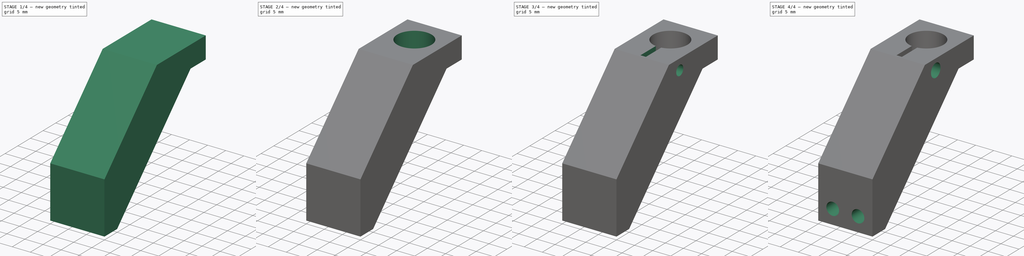
[diagram: build sequence overview — one tinted view per stage of 4, left to right]
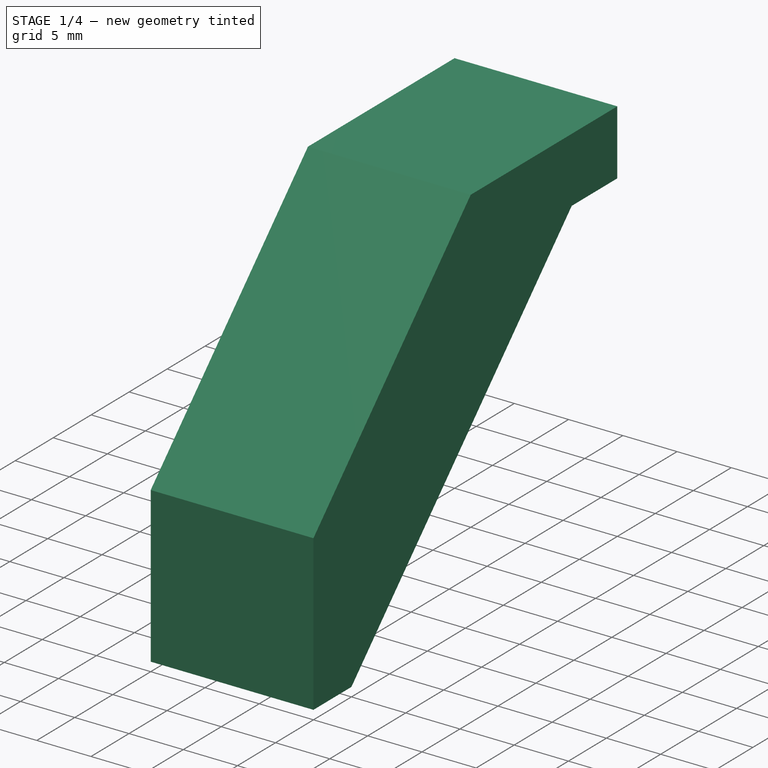
[diagram: stage 1 of 4 — iso view after this stage's code; geometry added in this stage tinted green]
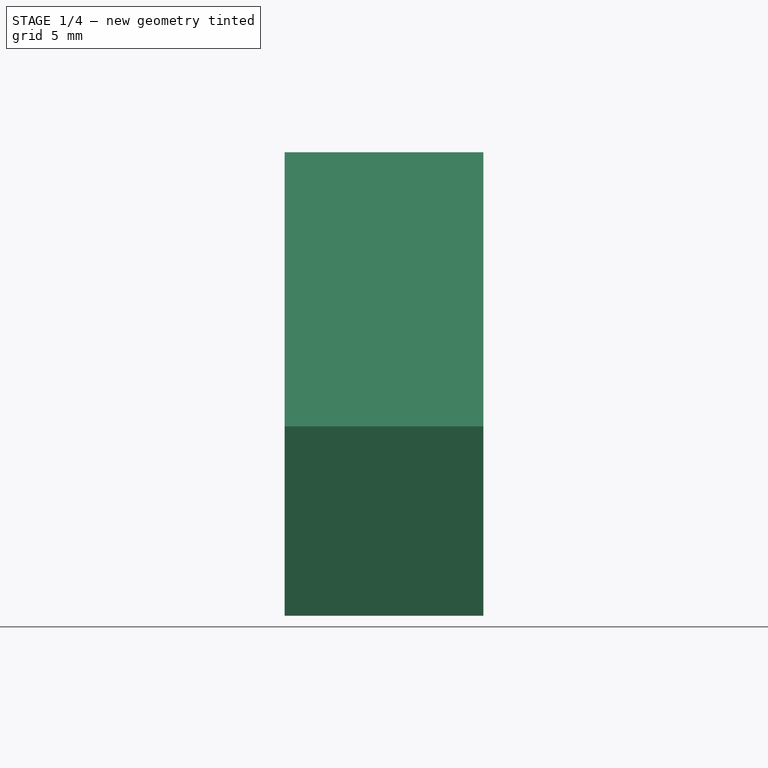
[diagram: stage 1 of 4 — front view after this stage's code; geometry added in this stage tinted green]
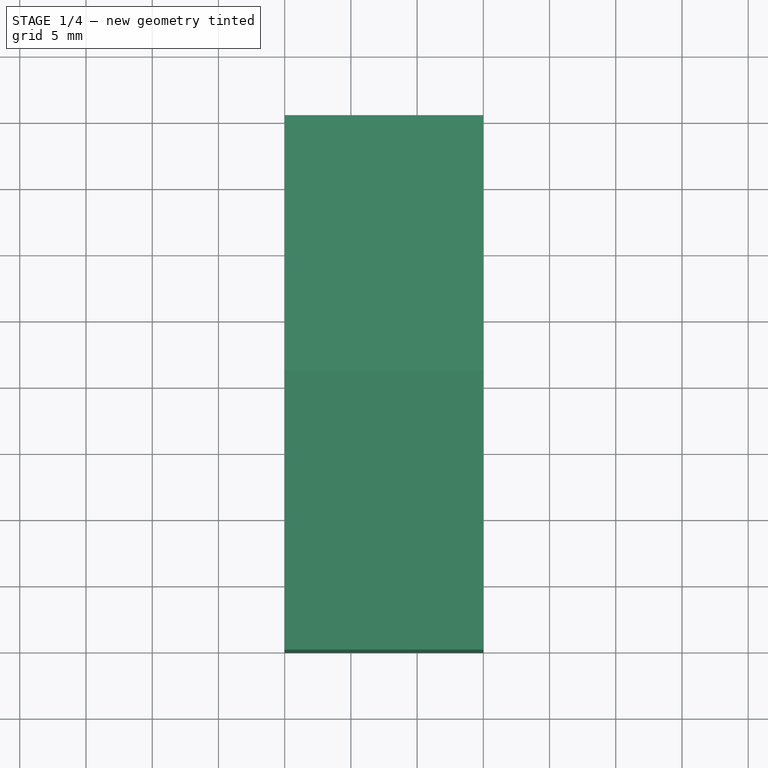
[diagram: stage 1 of 4 — top view after this stage's code; geometry added in this stage tinted green]
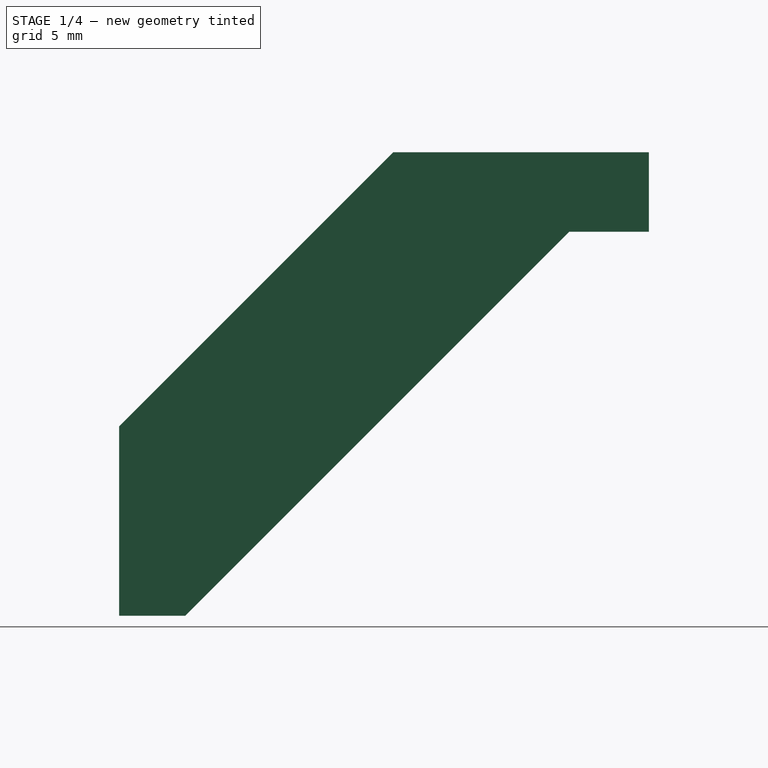
[diagram: stage 1 of 4 — right view after this stage's code; geometry added in this stage tinted green]
FCSTD DOCUMENT  (FreeCAD 0.19R)
Label: MicrometerHolder
License: All rights reserved
LicenseURL: http://en.wikipedia.org/wiki/All_rights_reserved
objects: Sketcher::SketchObject×14, PartDesign::Pocket×10, PartDesign::Pad×1, PartDesign::Body×1
note: 37 computed .brp shape members not serialized (recipe doc carries the construction recipe); baked Part::Feature solids carry a one-line shape summary decoded from their .brp

FEATURE [Sketcher::SketchObject] Sketch
  FullyConstrained = false
  MapMode = 5
  Placement = pos=(0,0,0) rot=(0.57735,0.57735,0.57735;2.0944rad)
  Support = -> [YZ_Plane]
  sketch-geometry (7):
    g0: LineSegment StartX=20.7016 StartY=0 StartZ=0 EndX=40 EndY=0 EndZ=0
    g1: LineSegment StartX=40 StartY=0 StartZ=0 EndX=40 EndY=-6 EndZ=0
    g2: LineSegment StartX=40 StartY=-6 StartZ=0 EndX=34 EndY=-6 EndZ=0
    g3: LineSegment StartX=5 StartY=-35 StartZ=0 EndX=0 EndY=-35 EndZ=0
    g4: LineSegment StartX=5 StartY=-35 StartZ=0 EndX=34 EndY=-6 EndZ=0
    g5: LineSegment StartX=0 StartY=-35 StartZ=0 EndX=0 EndY=-20.7016 EndZ=0
    g6: LineSegment StartX=0 StartY=-20.7016 StartZ=0 EndX=20.7016 EndY=0 EndZ=0
  constraints (20):
    c: PointOnObject(g0,g-1)
    c: Coincident(g0,g1)
    c: Vertical(g1)
    c: Coincident(g1,g2)
    c: Horizontal(g2)
    c: PointOnObject(g3,g-2)
    c: Horizontal(g3)
    c: Distance(g3) = 5
    c: Distance(g1) = 6
    c: DistanceX(g0) = 40
    c: DistanceY(g3) = -35
    c: Coincident(g4,g2)
    c: Coincident(g3,g5)
    c: PointOnObject(g5,g-2)
    c: Coincident(g5,g6)
    c: Coincident(g0,g6)
    c: PointOnObject(g0,g-1)
    c: Parallel(g4,g6)
    c: Angle(g6) = 0.785398
    c: Coincident(g4,g3)
FEATURE [PartDesign::Pad] Pad
  Direction = (1,1,1)
  Length = 15
  Length2 = 100
  Placement = pos=(0,0,0) rot=(0.57735,0.57735,0.57735;2.0944rad)
  Profile = -> Sketch
  Type = 0
FEATURE [Sketcher::SketchObject] Sketch001
  FullyConstrained = true
  MapMode = 5
  Placement = pos=(1.67e-14,20,-20) rot=(0.678598,0.678598,0.281085;3.68962rad)
  Support = -> [Pad]
  sketch-geometry (1):
    g0: Circle CenterX=-32 CenterY=7.5 CenterZ=0 NormalX=0 NormalY=0 NormalZ=1 AngleXU=0 Radius=4.725
  constraints (3):
    c: DistanceY(g0) = 7.5
    c: Diameter(g0) = 9.45
    c: DistanceX(g0) = -32
FEATURE [PartDesign::Pocket] Pocket
  BaseFeature = -> Pad
  Length = 5
  Length2 = 100
  Placement = pos=(0,0,0) rot=(0.57735,0.57735,0.57735;2.0944rad)
  Profile = -> Sketch001
  Type = 1
FEATURE [Sketcher::SketchObject] Sketch002
  FullyConstrained = false
  MapMode = 5
  Placement = pos=(-7e-16,0,0) rot=(0.57735,0.57735,-0.57735;4.18879rad)
  Support = -> [Pocket]
  sketch-geometry (4):
    g0: LineSegment StartX=-28.5714 StartY=8.5 StartZ=0 EndX=-15.0736 EndY=8.5 EndZ=0
    g1: LineSegment StartX=-15.0736 StartY=8.5 StartZ=0 EndX=-15.0736 EndY=6.5 EndZ=0
    g2: LineSegment StartX=-15.0736 StartY=6.5 StartZ=0 EndX=-28.5714 EndY=6.5 EndZ=0
    g3: LineSegment StartX=-28.5714 StartY=6.5 StartZ=0 EndX=-28.5714 EndY=8.5 EndZ=0
  constraints (10):
    c: Coincident(g0,g1)
    c: Coincident(g1,g2)
    c: Coincident(g2,g3)
    c: Coincident(g3,g0)
    c: Horizontal(g0)
    c: Horizontal(g2)
    c: Vertical(g1)
    c: Vertical(g3)
    c: DistanceY(g1) = 6.5
    c: DistanceY(g0) = 8.5
FEATURE [PartDesign::Pocket] Pocket001
  BaseFeature = -> Pocket
  Length = 5
  Length2 = 100
  Placement = pos=(0,0,0) rot=(0.57735,0.57735,0.57735;2.0944rad)
  Profile = -> Sketch002
  Type = 1
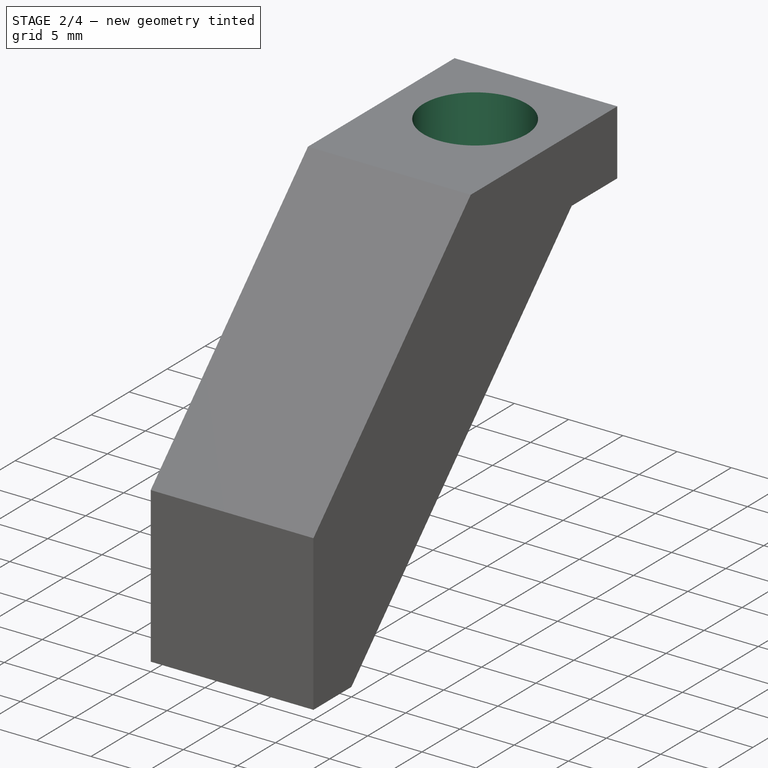
[diagram: stage 2 of 4 — iso view after this stage's code; geometry added in this stage tinted green]
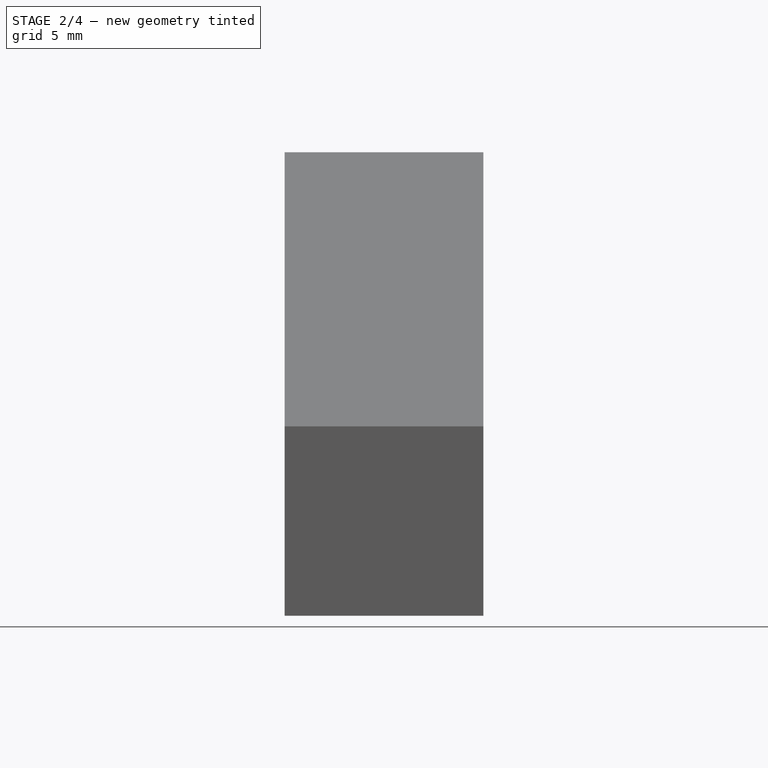
[diagram: stage 2 of 4 — front view after this stage's code; geometry added in this stage tinted green]
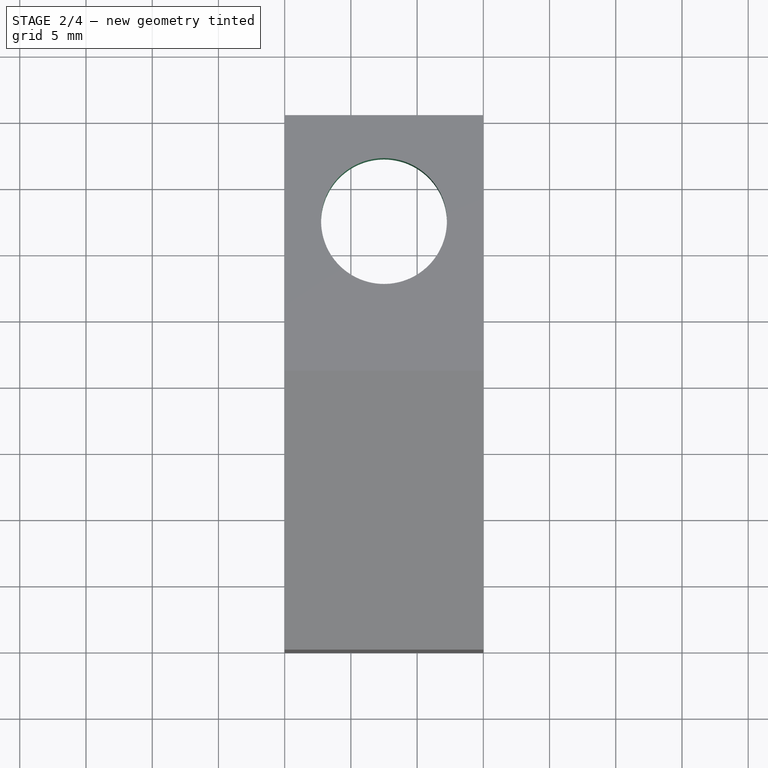
[diagram: stage 2 of 4 — top view after this stage's code; geometry added in this stage tinted green]
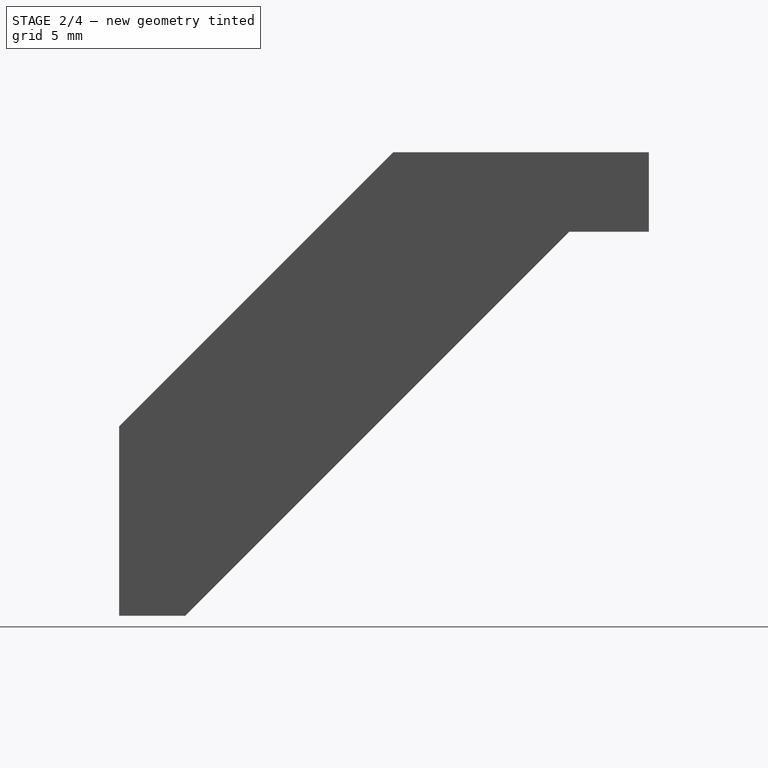
[diagram: stage 2 of 4 — right view after this stage's code; geometry added in this stage tinted green]
FEATURE [Sketcher::SketchObject] Sketch003
  FullyConstrained = true
  MapMode = 5
  Placement = pos=(1.36e-14,-1.94e-14,-35) rot=(0.707107,0.707107,0;3.14159rad)
  Support = -> [Pocket001]
  sketch-geometry (1):
    g0: Circle CenterX=23 CenterY=-3 CenterZ=0 NormalX=0 NormalY=0 NormalZ=1 AngleXU=0 Radius=1.75
  constraints (3):
    c: Diameter(g0) = 3.5
    c: DistanceY(g0) = -3
    c: DistanceX(g0) = 23
FEATURE [Sketcher::SketchObject] Sketch004
  FullyConstrained = true
  MapMode = 5
  Placement = pos=(1.36e-14,-1.94e-14,-35) rot=(0.707107,0.707107,0;3.14159rad)
  sketch-geometry (1):
    g0: Circle CenterX=23 CenterY=-3 CenterZ=0 NormalX=0 NormalY=0 NormalZ=1 AngleXU=0 Radius=1.4
  constraints (3):
    c: Diameter(g0) = 2.8
    c: DistanceX(g0) = 23
    c: DistanceY(g0) = -3
FEATURE [Sketcher::SketchObject] Sketch006
  FullyConstrained = true
  MapMode = 5
  Placement = pos=(1.67e-14,20,-20) rot=(0.678598,0.678598,0.281085;3.68962rad)
  Support = -> [Pocket001]
FEATURE [Sketcher::SketchObject] Sketch007
  FullyConstrained = false
  MapMode = 5
  Placement = pos=(1.78e-14,40,-1.33e-14) rot=(0.57735,0.57735,0.57735;4.18879rad)
  Support = -> [Pocket001]
  sketch-geometry (9):
    g0: LineSegment StartX=-37.9198 StartY=6.75 StartZ=0 EndX=-28 EndY=6.75 EndZ=0
    g1: LineSegment StartX=-28 StartY=6.75 StartZ=0 EndX=-28 EndY=1.25 EndZ=0
    g2: LineSegment StartX=-28 StartY=1.25 StartZ=0 EndX=-37.9198 EndY=1.25 EndZ=0
    g3: LineSegment StartX=-37.9198 StartY=1.25 StartZ=0 EndX=-37.9198 EndY=6.75 EndZ=0
    g4: LineSegment StartX=-37.4274 StartY=13.75 StartZ=0 EndX=-28 EndY=13.75 EndZ=0
    g5: LineSegment StartX=-28 StartY=13.75 StartZ=0 EndX=-28 EndY=8.25 EndZ=0
    g6: LineSegment StartX=-28 StartY=8.25 StartZ=0 EndX=-37.4274 EndY=8.25 EndZ=0
    g7: LineSegment StartX=-37.4274 StartY=8.25 StartZ=0 EndX=-37.4274 EndY=13.75 EndZ=0
    g8: LineSegment StartX=-46.9208 StartY=7.5 StartZ=0 EndX=16.8712 EndY=7.5 EndZ=0
  constraints (23):
    c: Coincident(g0,g1)
    c: Coincident(g1,g2)
    c: Coincident(g2,g3)
    c: Coincident(g3,g0)
    c: Horizontal(g0)
    c: Horizontal(g2)
    c: Vertical(g1)
    c: Vertical(g3)
    c: Distance(g1) = 5.5
    c: Coincident(g4,g5)
    c: Coincident(g5,g6)
    c: Coincident(g6,g7)
    c: Coincident(g7,g4)
    c: Horizontal(g4)
    c: Horizontal(g6)
    c: Vertical(g5)
    c: Vertical(g7)
    c: DistanceX(g0,g5) = 0
    c: Distance(g0,g5) = 1.5
    c: Equal(g5,g1)
    c: Symmetric(g0,g5,g8)
    c: DistanceY(g8) = 7.5
    c: DistanceX(g1) = -28
FEATURE [PartDesign::Pocket] Pocket002
  BaseFeature = -> Pocket001
  Length = 34
  Length2 = 100
  Placement = pos=(0,0,0) rot=(0.57735,0.57735,0.57735;2.0944rad)
  Profile = -> Sketch007
  Type = 0
FEATURE [Sketcher::SketchObject] Sketch008
  FullyConstrained = false
  MapMode = 5
  Placement = pos=(1.78e-14,40,-2.66e-14) rot=(0.57735,0.57735,0.57735;4.18879rad)
  Support = -> [Pocket002]
  sketch-geometry (5):
    g0: LineSegment StartX=-23.0024 StartY=13.5 StartZ=0 EndX=-6 EndY=13.5 EndZ=0
    g1: LineSegment StartX=-6 StartY=13.5 StartZ=0 EndX=-6 EndY=1.5 EndZ=0
    g2: LineSegment StartX=-6 StartY=1.5 StartZ=0 EndX=-23.0024 EndY=1.5 EndZ=0
    g3: LineSegment StartX=-23.0024 StartY=1.5 StartZ=0 EndX=-23.0024 EndY=13.5 EndZ=0
    g4: LineSegment StartX=-40.4874 StartY=7.5 StartZ=0 EndX=15.9496 EndY=7.5 EndZ=0
  constraints (12):
    c: Coincident(g0,g1)
    c: Coincident(g1,g2)
    c: Coincident(g2,g3)
    c: Coincident(g3,g0)
    c: Horizontal(g0)
    c: Horizontal(g2)
    c: Vertical(g1)
    c: Vertical(g3)
    c: DistanceX(g1) = -6
    c: Symmetric(g1,g0,g4)
    c: Distance(g1) = 12
    c: DistanceY(g4) = 7.5
FEATURE [PartDesign::Pocket] Pocket003
  BaseFeature = -> Pocket002
  Length = 13
  Length2 = 100
  Placement = pos=(0,0,0) rot=(0.57735,0.57735,0.57735;2.0944rad)
  Profile = -> Sketch008
  Type = 0
FEATURE [Sketcher::SketchObject] Sketch009
  FullyConstrained = true
  MapMode = 5
  Placement = pos=(0,0,-9.2e-15) rot=(0,0,-1;1.5708rad)
  Support = -> [Pocket003]
  sketch-geometry (1):
    g0: Circle CenterX=-32 CenterY=7.5 CenterZ=0 NormalX=0 NormalY=0 NormalZ=1 AngleXU=0 Radius=4.75
  constraints (3):
    c: Diameter(g0) = 9.5
    c: DistanceY(g0) = 7.5
    c: DistanceX(g0) = -32
FEATURE [PartDesign::Pocket] Pocket004
  BaseFeature = -> Pocket003
  Length = 5
  Length2 = 100
  Placement = pos=(0,0,0) rot=(0.57735,0.57735,0.57735;2.0944rad)
  Profile = -> Sketch009
  Type = 1
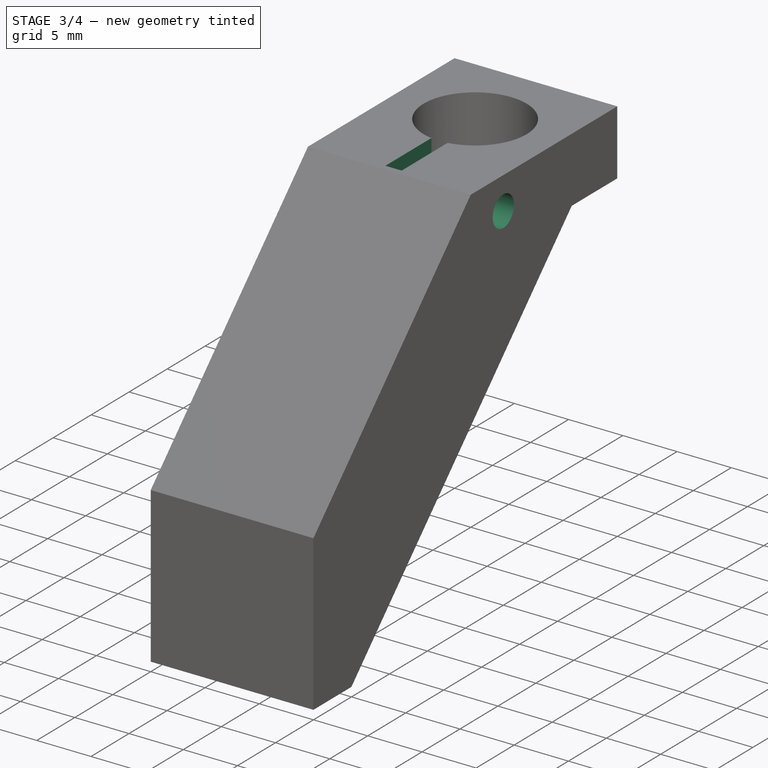
[diagram: stage 3 of 4 — iso view after this stage's code; geometry added in this stage tinted green]
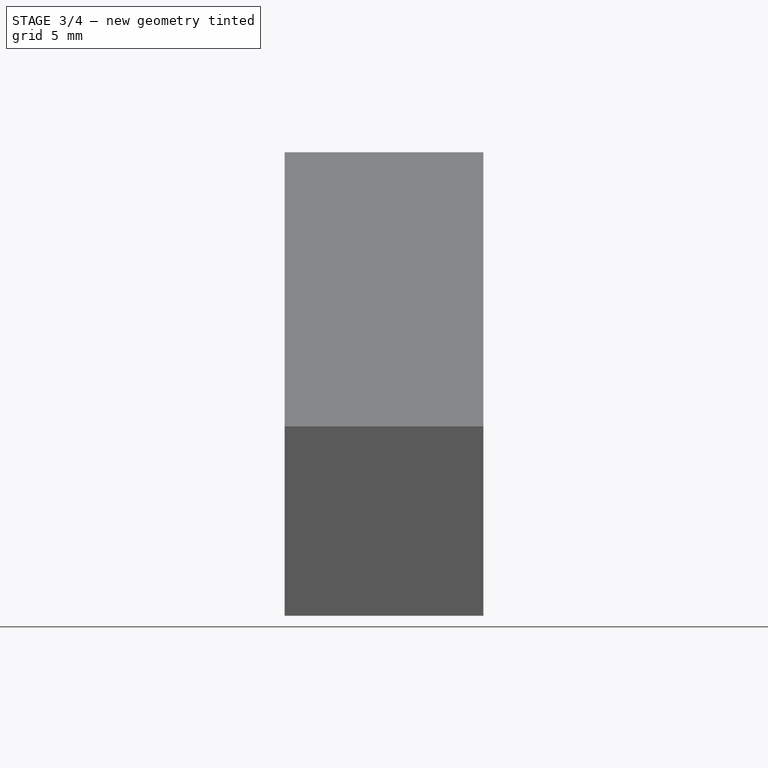
[diagram: stage 3 of 4 — front view after this stage's code; geometry added in this stage tinted green]
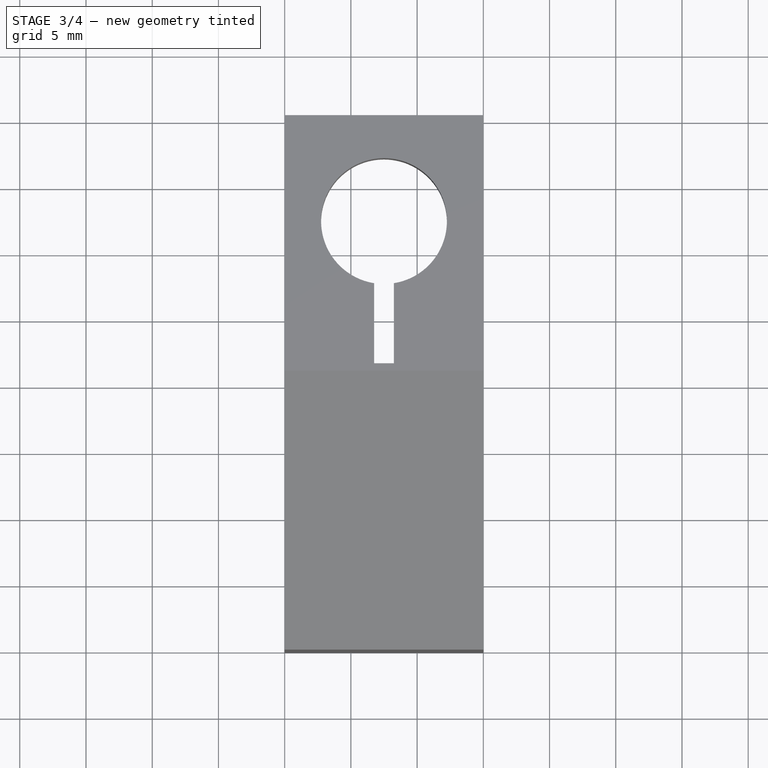
[diagram: stage 3 of 4 — top view after this stage's code; geometry added in this stage tinted green]
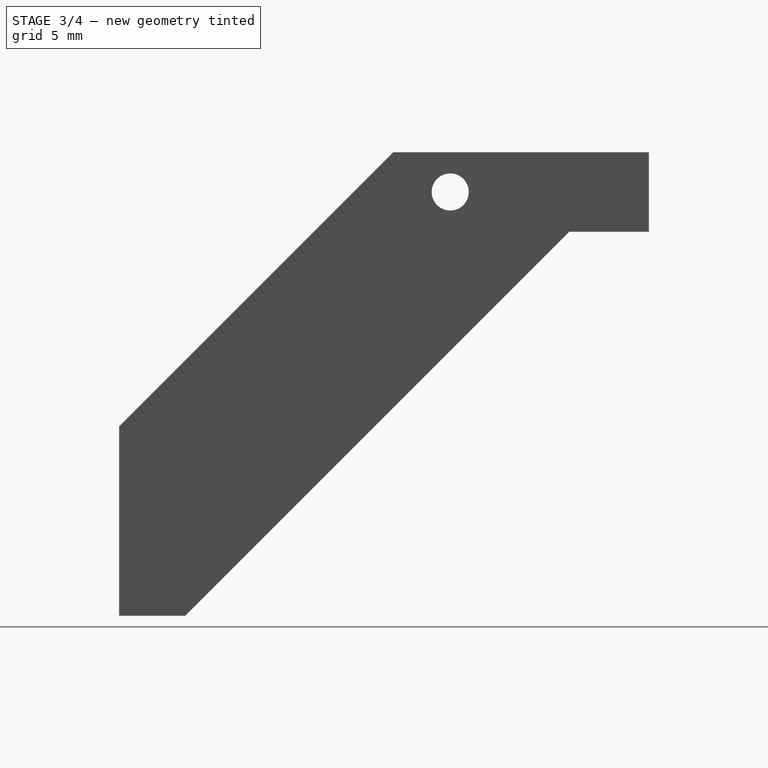
[diagram: stage 3 of 4 — right view after this stage's code; geometry added in this stage tinted green]
FEATURE [Sketcher::SketchObject] Sketch010
  FullyConstrained = false
  MapMode = 5
  Placement = pos=(0,0,-1.38e-14) rot=(0,0,-1;1.5708rad)
  Support = -> [Pocket004]
  sketch-geometry (5):
    g0: LineSegment StartX=-29.3555 StartY=8.25 StartZ=0 EndX=-21.2598 EndY=8.25 EndZ=0
    g1: LineSegment StartX=-21.2598 StartY=8.25 StartZ=0 EndX=-21.2598 EndY=6.75 EndZ=0
    g2: LineSegment StartX=-21.2598 StartY=6.75 StartZ=0 EndX=-29.3555 EndY=6.75 EndZ=0
    g3: LineSegment StartX=-29.3555 StartY=6.75 StartZ=0 EndX=-29.3555 EndY=8.25 EndZ=0
    g4: LineSegment StartX=-44.5506 StartY=7.5 StartZ=0 EndX=7.1378 EndY=7.5 EndZ=0
  constraints (11):
    c: Coincident(g0,g1)
    c: Coincident(g1,g2)
    c: Coincident(g2,g3)
    c: Coincident(g3,g0)
    c: Horizontal(g0)
    c: Horizontal(g2)
    c: Vertical(g1)
    c: Vertical(g3)
    c: Symmetric(g1,g0,g4)
    c: Distance(g3) = 1.5
    c: DistanceY(g4) = 7.5
FEATURE [PartDesign::Pocket] Pocket005
  BaseFeature = -> Pocket004
  Length = 5
  Length2 = 100
  Placement = pos=(0,0,0) rot=(0.57735,0.57735,0.57735;2.0944rad)
  Profile = -> Sketch010
  Type = 1
FEATURE [Sketcher::SketchObject] Sketch011  label="clampthread"
  FullyConstrained = true
  MapMode = 5
  Placement = pos=(-3.6e-15,0,0) rot=(-0.57735,-0.57735,0.57735;2.0944rad)
  Support = -> [Pocket005]
  sketch-geometry (1):
    g0: Circle CenterX=25 CenterY=3 CenterZ=0 NormalX=0 NormalY=0 NormalZ=1 AngleXU=0 Radius=1.4
  constraints (3):
    c: Diameter(g0) = 2.8
    c: DistanceY(g0) = 3
    c: DistanceX(g0) = 25
FEATURE [PartDesign::Pocket] Pocket006
  BaseFeature = -> Pocket005
  Length = 5
  Length2 = 100
  Placement = pos=(0,0,0) rot=(0.57735,0.57735,0.57735;2.0944rad)
  Profile = -> Sketch011
  Type = 1
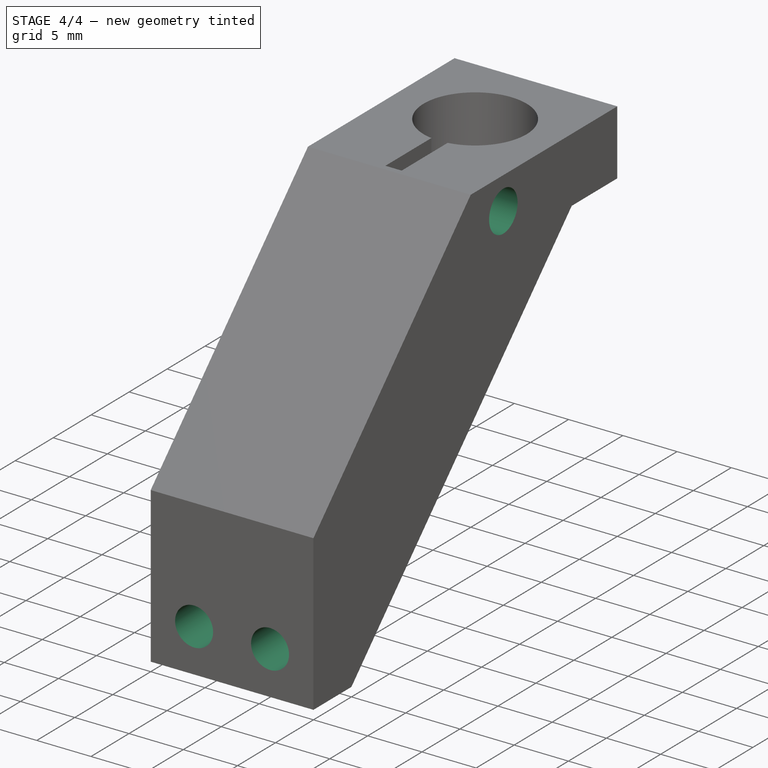
[diagram: stage 4 of 4 — iso view after this stage's code; geometry added in this stage tinted green]
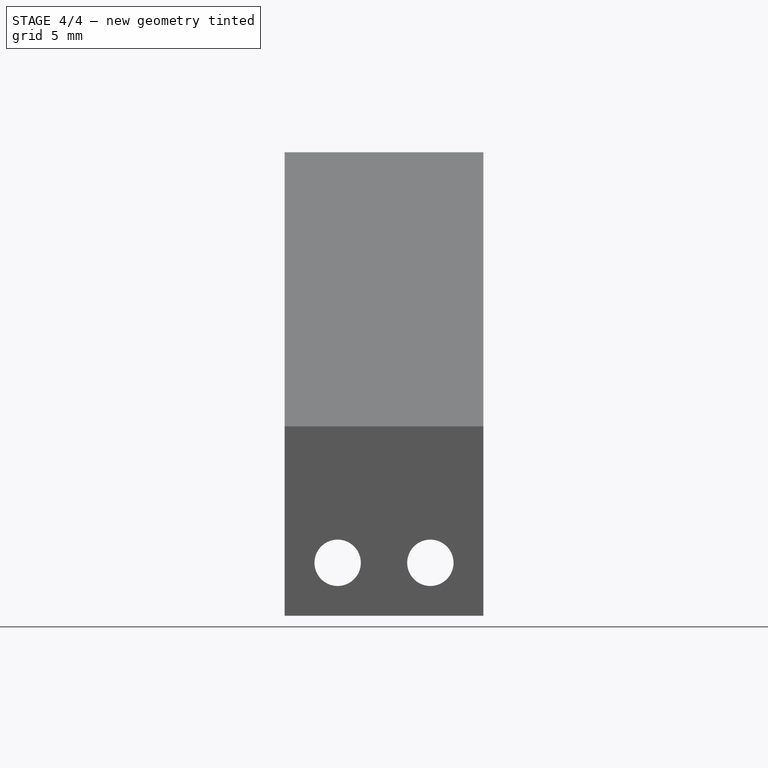
[diagram: stage 4 of 4 — front view after this stage's code; geometry added in this stage tinted green]
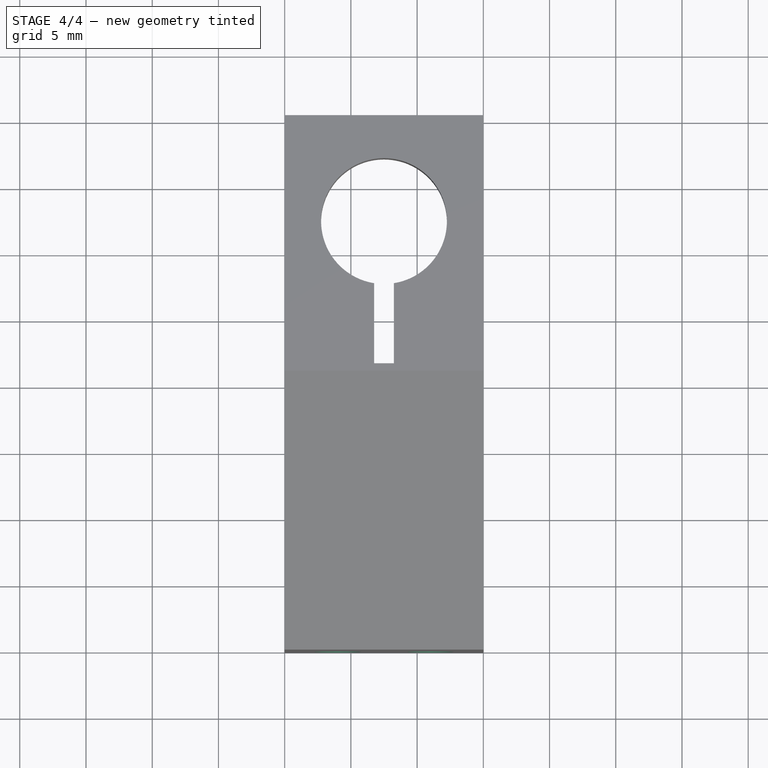
[diagram: stage 4 of 4 — top view after this stage's code; geometry added in this stage tinted green]
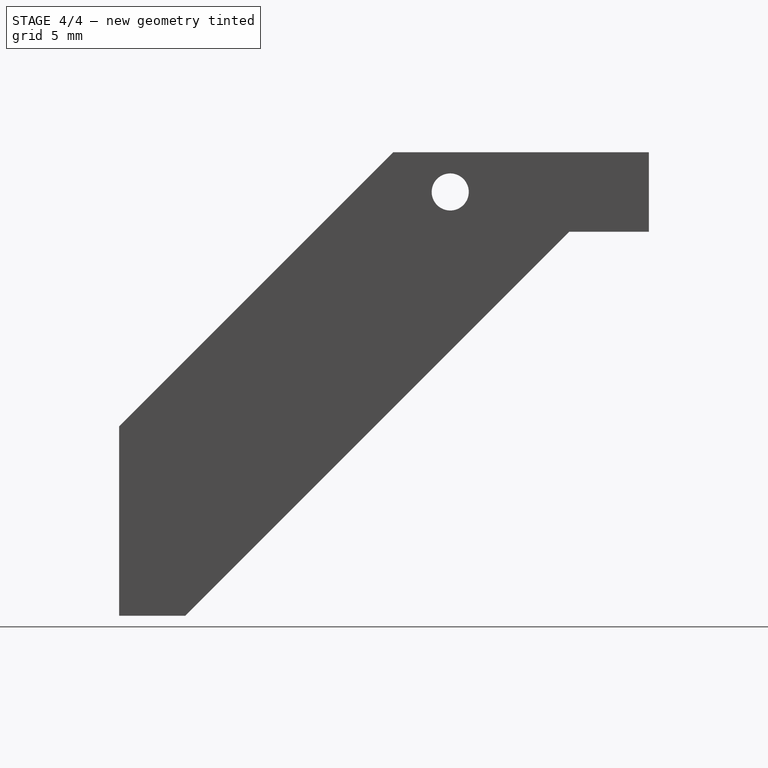
[diagram: stage 4 of 4 — right view after this stage's code; geometry added in this stage tinted green]
FEATURE [Sketcher::SketchObject] Sketch012  label="ClampClearance"
  FullyConstrained = true
  MapMode = 5
  Placement = pos=(-4.3e-15,0,0) rot=(-0.57735,-0.57735,0.57735;2.0944rad)
  Support = -> [Pocket006]
  sketch-geometry (1):
    g0: Circle CenterX=25 CenterY=3 CenterZ=0 NormalX=0 NormalY=0 NormalZ=1 AngleXU=0 Radius=1.4
  constraints (3):
    c: Diameter(g0) = 2.8
    c: DistanceY(g0) = 3
    c: DistanceX(g0) = 25
FEATURE [PartDesign::Pocket] Pocket007
  BaseFeature = -> Pocket006
  Length = 8
  Length2 = 100
  Placement = pos=(0,0,0) rot=(0.57735,0.57735,0.57735;2.0944rad)
  Profile = -> Sketch012
  Type = 0
FEATURE [Sketcher::SketchObject] Sketch013  label="Bedholes"
  ExternalGeometry = -> [Pocket007]
  FullyConstrained = true
  MapMode = 5
  Placement = pos=(0,6,-1.2e-14) rot=(0.57735,0.57735,0.57735;4.18879rad)
  Support = -> [Pocket007]
  sketch-geometry (2):
    g0: Circle CenterX=-31 CenterY=11 CenterZ=0 NormalX=0 NormalY=0 NormalZ=1 AngleXU=0 Radius=1.75
    g1: Circle CenterX=-31 CenterY=4 CenterZ=0 NormalX=0 NormalY=0 NormalZ=1 AngleXU=0 Radius=1.75
  constraints (6):
    c: DistanceY(g1) = 4
    c: DistanceY(g0) = 11
    c: Distance(g0,g-3) = 4
    c: DistanceX(g1,g0) = 0
    c: Diameter(g0) = 3.5
    c: Equal(g0,g1)
FEATURE [PartDesign::Pocket] Pocket008
  BaseFeature = -> Pocket007
  Length = 5
  Length2 = 100
  Placement = pos=(0,0,0) rot=(0.57735,0.57735,0.57735;2.0944rad)
  Profile = -> Sketch013
  Type = 1
FEATURE [Sketcher::SketchObject] Sketch014
  FullyConstrained = true
  MapMode = 5
  Placement = pos=(15,-3e-14,1.67e-14) rot=(0.57735,0.57735,0.57735;2.0944rad)
  Support = -> [Pocket008]
  sketch-geometry (1):
    g0: Circle CenterX=25 CenterY=-3 CenterZ=0 NormalX=0 NormalY=0 NormalZ=1 AngleXU=0 Radius=1.875
  constraints (3):
    c: Diameter(g0) = 3.75
    c: DistanceY(g0) = -3
    c: DistanceX(g0) = 25
FEATURE [PartDesign::Pocket] Pocket009
  BaseFeature = -> Pocket008
  Length = 8
  Length2 = 100
  Placement = pos=(0,0,0) rot=(0.57735,0.57735,0.57735;2.0944rad)
  Profile = -> Sketch014
  Type = 0
FEATURE [PartDesign::Body] Body
  Group = -> [Sketch,Pad,Sketch001,Pocket,Sketch002,Pocket001,Sketch003,Sketch004,Sketch006,Sketch007,Pocket002,Sketch008,Pocket003,Sketch009,Pocket004,Sketch010,Pocket005,Sketch011,Pocket006,Sketch012,Pocket007,Sketch013,Pocket008,Sketch014,Pocket009]
  Origin = -> Origin
  Tip = -> Pocket009
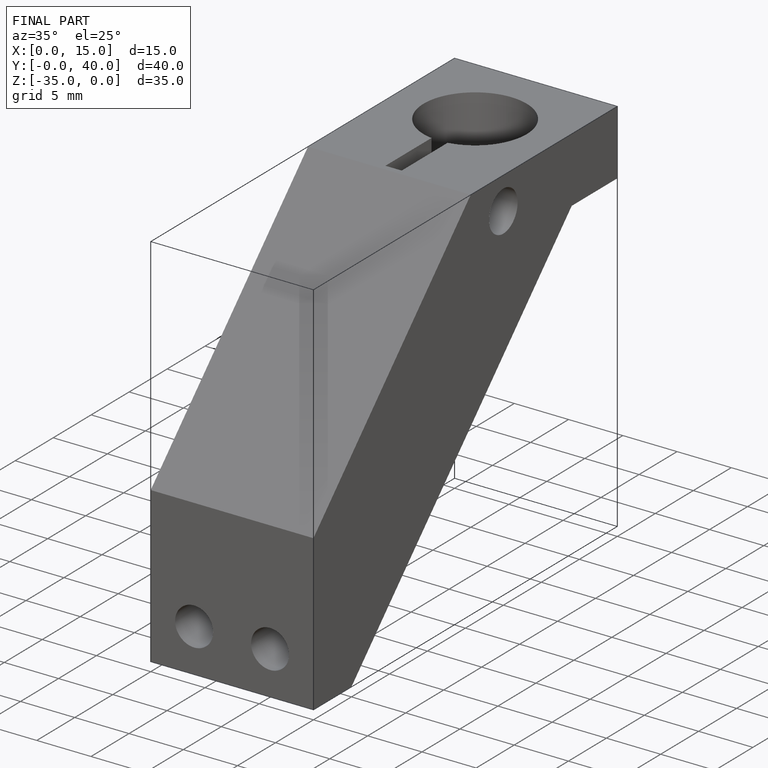
[diagram: finished part — iso view with bounding-box wireframe]
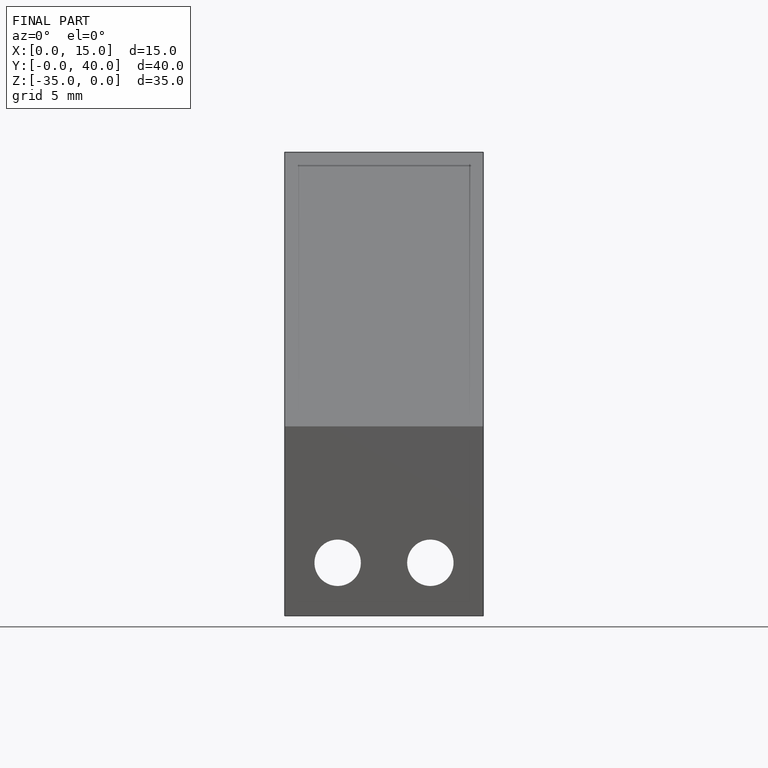
[diagram: finished part — front view with bounding-box wireframe]
